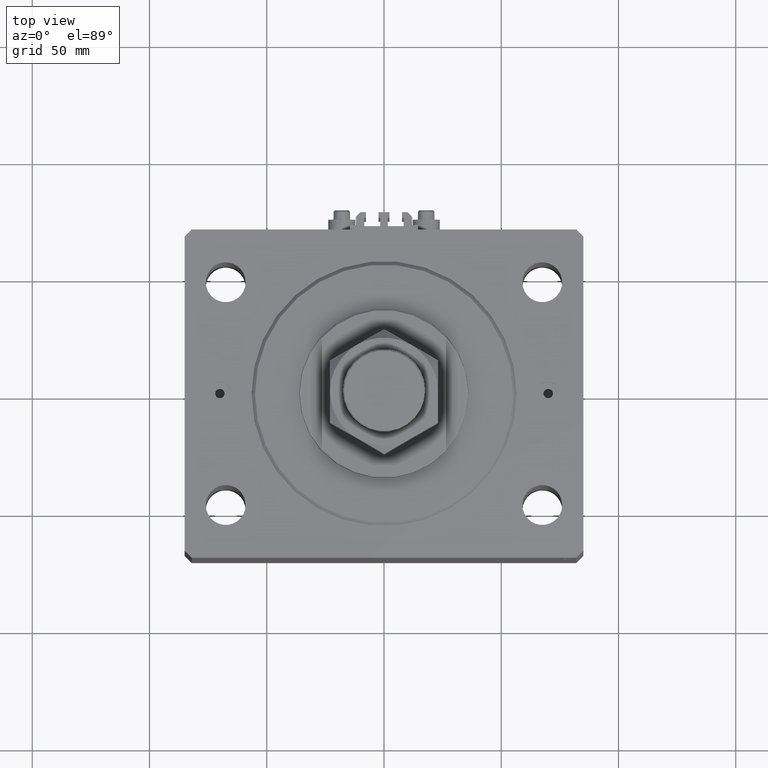
[diagram: clean part render]
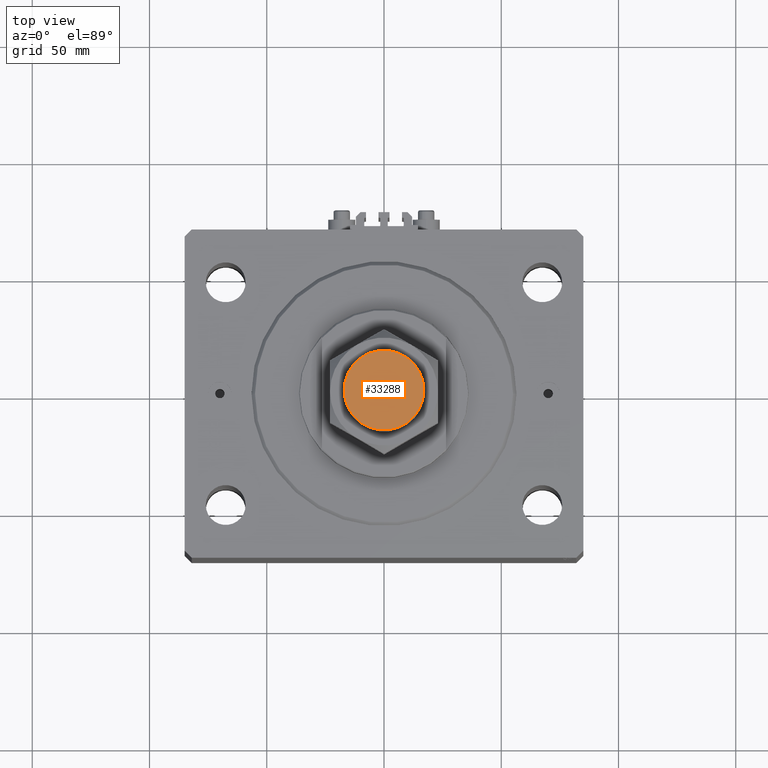
[diagram: same view with one face highlighted and labeled with its STEP entity id]
A machine part, top view. The second image highlights one B-rep face of the part: STEP entity #33288.
In plain terms, the highlighted planar face has unit normal (0, 0, 1).
Its self-contained STEP definition (entity closure, byte-faithful):
#1428 = CARTESIAN_POINT ( 'NONE',  ( 0.000000000000000000, 0.000000000000000000, 60.00000000000000000 ) ) ;
#1837 = AXIS2_PLACEMENT_3D ( 'NONE', #37175, #32972, #2514 ) ;
#2514 = DIRECTION ( 'NONE',  ( 1.000000000000000000, 0.000000000000000000, -0.000000000000000000 ) ) ;
#4420 = AXIS2_PLACEMENT_3D ( 'NONE', #1428, #9613, #36104 ) ;
#9600 = ORIENTED_EDGE ( 'NONE', *, *, #22651, .T. ) ;
#9613 = DIRECTION ( 'NONE',  ( 0.000000000000000000, 0.000000000000000000, 1.000000000000000000 ) ) ;
#10692 = PLANE ( 'NONE',  #1837 ) ;
#10867 = AXIS2_PLACEMENT_3D ( 'NONE', #31299, #46647, #12730 ) ;
#11087 = CARTESIAN_POINT ( 'NONE',  ( 16.99999999999998579, 2.112515728529183672E-15, 60.00000000000000000 ) ) ;
#12730 = DIRECTION ( 'NONE',  ( 1.000000000000000000, 0.000000000000000000, 0.000000000000000000 ) ) ;
#16414 = CIRCLE ( 'NONE', #10867, 16.99999999999998579 ) ;
#22364 = VERTEX_POINT ( 'NONE', #11087 ) ;
#22651 = EDGE_CURVE ( 'NONE', #22364, #36567, #16414, .T. ) ;
#25777 = CIRCLE ( 'NONE', #4420, 16.99999999999998579 ) ;
#31299 = CARTESIAN_POINT ( 'NONE',  ( 0.000000000000000000, 0.000000000000000000, 60.00000000000000000 ) ) ;
#31809 = FACE_OUTER_BOUND ( 'NONE', #42777, .T. ) ;
#32972 = DIRECTION ( 'NONE',  ( 0.000000000000000000, 0.000000000000000000, 1.000000000000000000 ) ) ;
#33288 = ADVANCED_FACE ( 'NONE', ( #31809 ), #10692, .T. ) ;
#36104 = DIRECTION ( 'NONE',  ( 1.000000000000000000, 0.000000000000000000, 0.000000000000000000 ) ) ;
#36567 = VERTEX_POINT ( 'NONE', #44099 ) ;
#37175 = CARTESIAN_POINT ( 'NONE',  ( 0.000000000000000000, 0.000000000000000000, 60.00000000000000000 ) ) ;
#42777 = EDGE_LOOP ( 'NONE', ( #44154, #9600 ) ) ;
#43628 = EDGE_CURVE ( 'NONE', #36567, #22364, #25777, .T. ) ;
#44099 = CARTESIAN_POINT ( 'NONE',  ( -16.99999999999998579, 0.000000000000000000, 60.00000000000000000 ) ) ;
#44154 = ORIENTED_EDGE ( 'NONE', *, *, #43628, .T. ) ;
#46647 = DIRECTION ( 'NONE',  ( 0.000000000000000000, 0.000000000000000000, 1.000000000000000000 ) ) ;